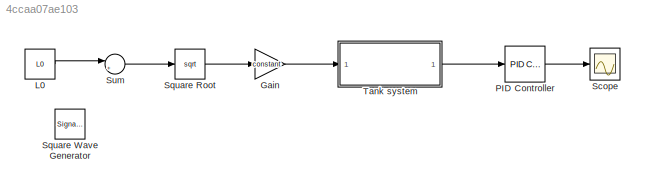
MODEL slx_4ccaa07ae103
KIND model
CONFIG AbsTol = auto
CONFIG EnableMultiTasking = off
CONFIG FixedStep = auto
CONFIG MaxStep = auto
CONFIG MinStep = auto
CONFIG RelTol = 1e-3
CONFIG SampleTimeConstraint = Unconstrained
CONFIG SolverName = VariableStepAuto
CONFIG StartTime = 0.0
CONFIG StopTime = 100
BLOCK [Gain] Gain
  Gain = constant
BLOCK [Constant] L0
  Value = L0
BLOCK [Reference] PID Controller  REF=pid_lib/PID Controller
  Ports = [1, 1]
  SourceBlock = pid_lib/PID Controller
  SourceProductBaseCode = SL
  SourceType = PID 1dof
BLOCK [Scope] Scope
  Floating = off
  NumInputPorts = 1
  Ports = [1]
  ScopeSpecificationString = Simulink.scopes.TimeScopeBlockCfg('CurrentConfiguration', extmgr.ConfigurationSet(extmgr.Configuration('Core','General UI',true),extmgr.Configuration('Core','Source UI',true),extmgr.Configuration('Sources','WiredSimulink',true),extmgr.Configuration('Visuals','Time Domain',true,'SerializedDisplays',{struct('MinYLimReal','-1.97753','MaxYLimReal','17.79776','YLabelReal','','MinYLimMag','0.00000','Max...<+1336ch>
BLOCK [Sqrt] Square Root
BLOCK [SignalGenerator] Square Wave Generator
  Frequency = 0.1
  Ports = [0, 1]
  WaveForm = square
BLOCK [Sum] Sum
  Inputs = |++
  Ports = [2, 1]
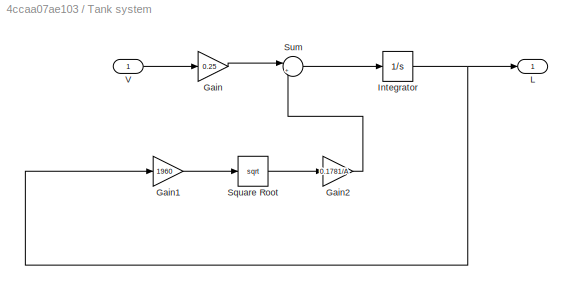
BLOCK [SubSystem] Tank system
  Ports = [1, 1]
  RequestExecContextInheritance = off
BLOCK [Gain] Tank system/Gain
  Gain = 0.25
BLOCK [Gain] Tank system/Gain1
  Gain = 1960
BLOCK [Gain] Tank system/Gain2
  Gain = 0.1781/A
BLOCK [Integrator] Tank system/Integrator
  Ports = [1, 1]
BLOCK [Outport] Tank system/L
BLOCK [Sqrt] Tank system/Square Root
BLOCK [Sum] Tank system/Sum
  Inputs = |+-
  Ports = [2, 1]
BLOCK [Inport] Tank system/V
LINE Gain:1 -> Tank system:1
LINE L0:1 -> Sum:1
LINE PID Controller:1 -> Scope:1
LINE Square Root:1 -> Gain:1
LINE Sum:1 -> Square Root:1
LINE Tank system/Gain1:1 -> Tank system/Square Root:1
LINE Tank system/Gain2:1 -> Tank system/Sum:2
LINE Tank system/Gain:1 -> Tank system/Sum:1
NET Tank system/Integrator:1 -> Tank system/Gain1:1, Tank system/L:1
LINE Tank system/Square Root:1 -> Tank system/Gain2:1
LINE Tank system/Sum:1 -> Tank system/Integrator:1
LINE Tank system/V:1 -> Tank system/Gain:1
LINE Tank system:1 -> PID Controller:1
note: NET lines group one-source signal fan-out (src -> all destinations, sorted); 1:1 wires keep LINE
